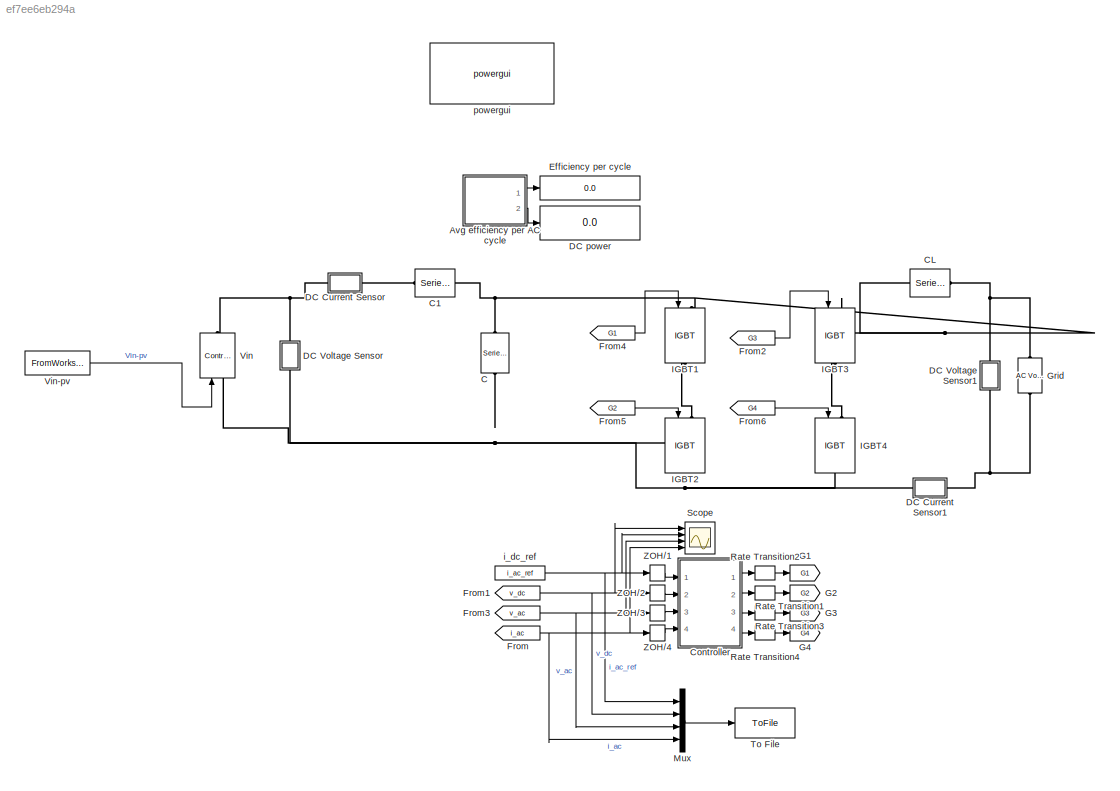
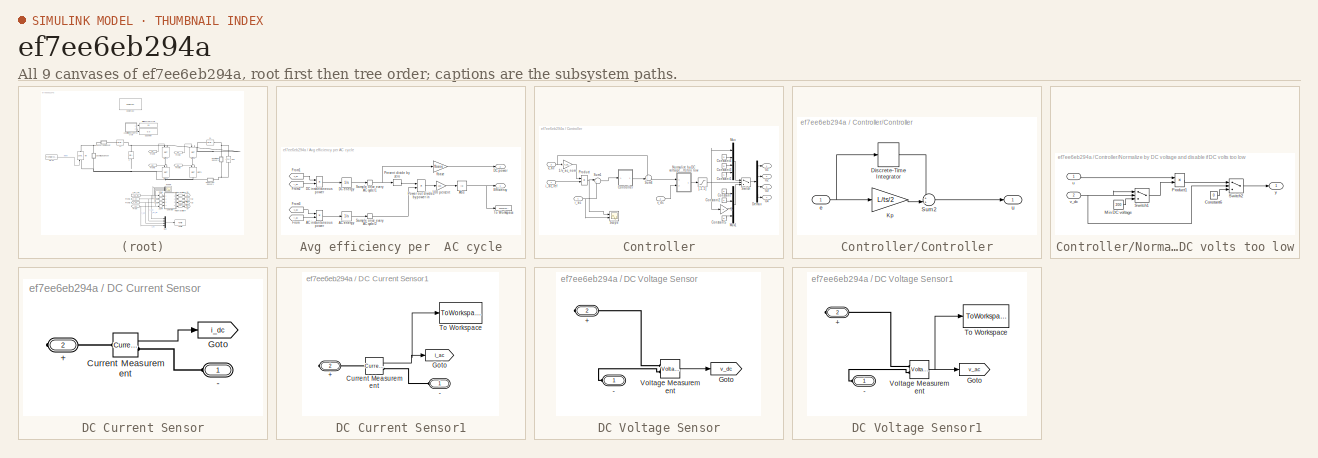
[diagram: thumbnail index - all 9 canvases of the model, root first then tree order]
MODEL slx_ef7ee6eb294a
KIND model
CONFIG AbsTol = auto
CONFIG EnableMultiTasking = off
CONFIG FixedStep = auto
CONFIG InitFcn = load PVOut_final;\nVin = timeseries(ans.Data(:,1),ans.Time);\nirradiance = 1000;\ni_ac_ref = 20.05;\nv_dc_ref = 342;\ntemperature = 20;\nf_pwm = 10000;\nL = 0.005;\nC = 5000e-6;\nts = 1/f_pwm/10;\nv_ac_nom = 220;\nfbase = 50;
CONFIG MaxStep = auto
CONFIG MinStep = auto
CONFIG RelTol = 1e-3
CONFIG SampleTimeConstraint = Unconstrained
CONFIG Solver = VariableStepAuto
CONFIG SolverName = VariableStepAuto
CONFIG StartTime = 0.0
CONFIG StopTime = 43200
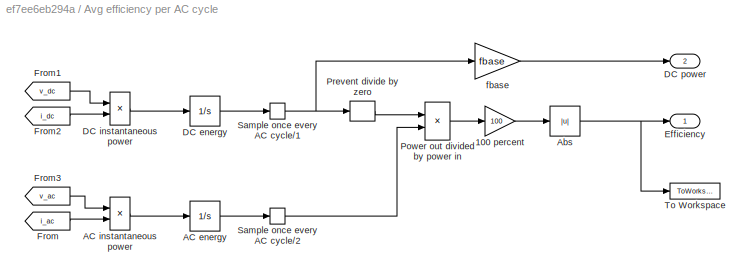
BLOCK [SubSystem] Avg efficiency per  AC cycle
  Ports = [0, 2]
  RequestExecContextInheritance = off
BLOCK [Gain] Avg efficiency per  AC cycle/100 percent
  Gain = 100
BLOCK [Integrator] Avg efficiency per  AC cycle/AC energy
  Ports = [1, 1]
BLOCK [Product] Avg efficiency per  AC cycle/AC instantaneous power
  Ports = [2, 1]
  RndMeth = Floor
BLOCK [Abs] Avg efficiency per  AC cycle/Abs
  SaturateOnIntegerOverflow = off
BLOCK [Integrator] Avg efficiency per  AC cycle/DC energy
  Ports = [1, 1]
BLOCK [Product] Avg efficiency per  AC cycle/DC instantaneous power
  Ports = [2, 1]
  RndMeth = Floor
BLOCK [Outport] Avg efficiency per  AC cycle/DC power
  IconDisplay = Port number
  Port = 2
BLOCK [Outport] Avg efficiency per  AC cycle/Efficiency
  IconDisplay = Port number
BLOCK [From] Avg efficiency per  AC cycle/From
  GotoTag = i_ac
  TagVisibility = global
BLOCK [From] Avg efficiency per  AC cycle/From1
  GotoTag = v_dc
  TagVisibility = global
BLOCK [From] Avg efficiency per  AC cycle/From2
  GotoTag = i_dc
  TagVisibility = global
BLOCK [From] Avg efficiency per  AC cycle/From3
  GotoTag = v_ac
  TagVisibility = global
BLOCK [Product] Avg efficiency per  AC cycle/Power out divided by power in
  Inputs = /*
  Ports = [2, 1]
  RndMeth = Floor
BLOCK [Bias] Avg efficiency per  AC cycle/Prevent divide by zero
  Bias = eps
  SaturateOnIntegerOverflow = off
BLOCK [ZeroOrderHold] Avg efficiency per  AC cycle/Sample once every AC cycle//1
  SampleTime = 1/fbase
BLOCK [ZeroOrderHold] Avg efficiency per  AC cycle/Sample once every AC cycle//2
  SampleTime = 1/fbase
BLOCK [ToWorkspace] Avg efficiency per  AC cycle/To Workspace
  MaxDataPoints = 1
  Ports = [1]
  SampleTime = -1
  SaveFormat = Structure
  VariableName = efficiency
BLOCK [Gain] Avg efficiency per  AC cycle/fbase
  Gain = fbase
BLOCK [Reference] C  REF=powerlib/Elements/Series RLC Branch
  Ports = [0, 0, 0, 0, 0, 1, 1]
  SourceBlock = powerlib/Elements/Series RLC Branch
  SourceProductBaseCode = PS
  SourceProductName = Simscape Power Systems
  SourceType = Series RLC Branch
BLOCK [Reference] C1  REF=powerlib/Elements/Series RLC Branch
  Ports = [0, 0, 0, 0, 0, 1, 1]
  SourceBlock = powerlib/Elements/Series RLC Branch
  SourceProductBaseCode = PS
  SourceProductName = Simscape Power Systems
  SourceType = Series RLC Branch
BLOCK [Reference] CL  REF=powerlib/Elements/Series RLC Branch
  Ports = [0, 0, 0, 0, 0, 1, 1]
  SourceBlock = powerlib/Elements/Series RLC Branch
  SourceProductBaseCode = PS
  SourceProductName = Simscape Power Systems
  SourceType = Series RLC Branch
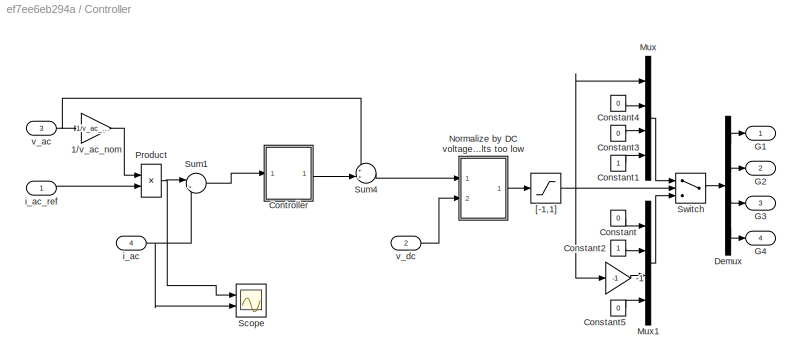
BLOCK [SubSystem] Controller
  Ports = [4, 4]
  RequestExecContextInheritance = off
BLOCK [Gain] Controller/-1
  Gain = -1
BLOCK [Gain] Controller/1//v_ac_nom
  Gain = 1/v_ac_nom
BLOCK [Constant] Controller/Constant
  Value = 0
BLOCK [Constant] Controller/Constant1
BLOCK [Constant] Controller/Constant2
BLOCK [Constant] Controller/Constant3
  Value = 0
BLOCK [Constant] Controller/Constant4
  Value = 0
BLOCK [Constant] Controller/Constant5
  Value = 0
BLOCK [SubSystem] Controller/Controller
  Ports = [1, 1]
  RequestExecContextInheritance = off
BLOCK [DiscreteIntegrator] Controller/Controller/Discrete-Time Integrator
  ICPrevOutput = DiscIntNeverNeededParam
  ICPrevScaledInput = DiscIntNeverNeededParam
  InitialCondition = 15
  Ports = [1, 1]
  SampleTime = ts
  gainval = 1000*L/ts
BLOCK [Gain] Controller/Controller/Kp
  Gain = L/ts/2
BLOCK [Sum] Controller/Controller/Sum2
  IconShape = round
  Inputs = ++|
  Ports = [2, 1]
BLOCK [Inport] Controller/Controller/e
  IconDisplay = Port number
BLOCK [Outport] Controller/Controller/u
  IconDisplay = Port number
BLOCK [Demux] Controller/Demux
  DisplayOption = bar
  Ports = [1, 4]
BLOCK [Outport] Controller/G1
  IconDisplay = Port number
BLOCK [Outport] Controller/G2
  IconDisplay = Port number
  Port = 2
BLOCK [Outport] Controller/G3
  IconDisplay = Port number
  Port = 3
BLOCK [Outport] Controller/G4
  IconDisplay = Port number
  Port = 4
BLOCK [Mux] Controller/Mux
  DisplayOption = bar
  Ports = [4, 1]
BLOCK [Mux] Controller/Mux1
  DisplayOption = bar
  Ports = [4, 1]
BLOCK [SubSystem] Controller/Normalize by DC voltage and disable if DC volts too low
  Ports = [2, 1]
  RequestExecContextInheritance = off
BLOCK [Constant] Controller/Normalize by DC voltage and disable if DC volts too low/Constant6
  Value = 0
BLOCK [Constant] Controller/Normalize by DC voltage and disable if DC volts too low/Min DC voltage
  Value = 200
BLOCK [Product] Controller/Normalize by DC voltage and disable if DC volts too low/Product1
  Inputs = */
  Ports = [2, 1]
  RndMeth = Floor
BLOCK [Switch] Controller/Normalize by DC voltage and disable if DC volts too low/Switch1
  SaturateOnIntegerOverflow = off
  Threshold = 200
BLOCK [Switch] Controller/Normalize by DC voltage and disable if DC volts too low/Switch2
  SaturateOnIntegerOverflow = off
  Threshold = 200
BLOCK [Inport] Controller/Normalize by DC voltage and disable if DC volts too low/u
  IconDisplay = Port number
BLOCK [Inport] Controller/Normalize by DC voltage and disable if DC volts too low/v_dc
  IconDisplay = Port number
  Port = 2
BLOCK [Outport] Controller/Normalize by DC voltage and disable if DC volts too low/y
  IconDisplay = Port number
BLOCK [Product] Controller/Product
  Ports = [2, 1]
  RndMeth = Floor
BLOCK [Scope] Controller/Scope
  Floating = off
  NumInputPorts = 2
  Ports = [2]
  ScopeSpecificationString = Simulink.scopes.TimeScopeBlockCfg('CurrentConfiguration', extmgr.ConfigurationSet(extmgr.Configuration('Core','General UI',true,'FigureColor',[0.156862745098039 0.156862745098039 0.156862745098039]),extmgr.Configuration('Core','Source UI',true),extmgr.Configuration('Sources','WiredSimulink',true,'DataLoggingSaveFormat','StructureWithTime','DataLoggingDecimation','1','DataLoggingDecimateData',true)...<+3434ch>
BLOCK [Sum] Controller/Sum1
  IconShape = round
  Inputs = |+-
  Ports = [2, 1]
BLOCK [Sum] Controller/Sum4
  IconShape = round
  Inputs = ++|
  Ports = [2, 1]
BLOCK [Switch] Controller/Switch
  SaturateOnIntegerOverflow = off
BLOCK [Saturate] Controller/[-1,1]
  InputPortMap = u0
  LowerLimit = -1
  Ports = [1, 1]
  UpperLimit = 1
BLOCK [Inport] Controller/i_ac
  IconDisplay = Port number
  Port = 4
BLOCK [Inport] Controller/i_ac_ref
  IconDisplay = Port number
BLOCK [Inport] Controller/v_ac
  IconDisplay = Port number
  Port = 3
BLOCK [Inport] Controller/v_dc
  IconDisplay = Port number
  Port = 2
BLOCK [SubSystem] DC Current Sensor
  Ports = [0, 0, 0, 0, 0, 1, 1]
  RequestExecContextInheritance = off
BLOCK [PMIOPort] DC Current Sensor/+
  Port = 2
  Side = Right
BLOCK [PMIOPort] DC Current Sensor/-
  Side = Left
BLOCK [Reference] DC Current Sensor/Current Measurement  REF=powerlib/Measurements/Current Measurement
  Ports = [0, 1, 0, 0, 0, 1, 1]
  SourceBlock = powerlib/Measurements/Current Measurement
  SourceProductBaseCode = PS
  SourceProductName = Simscape Power Systems
  SourceType = Current Measurement
  UserDataPersistent = on
BLOCK [Goto] DC Current Sensor/Goto
  GotoTag = i_dc
  TagVisibility = global
BLOCK [SubSystem] DC Current Sensor1
  Ports = [0, 0, 0, 0, 0, 1, 1]
  RequestExecContextInheritance = off
BLOCK [PMIOPort] DC Current Sensor1/+
  Port = 2
  Side = Right
BLOCK [PMIOPort] DC Current Sensor1/-
  Side = Left
BLOCK [Reference] DC Current Sensor1/Current Measurement  REF=powerlib/Measurements/Current Measurement
  Ports = [0, 1, 0, 0, 0, 1, 1]
  SourceBlock = powerlib/Measurements/Current Measurement
  SourceProductBaseCode = PS
  SourceProductName = Simscape Power Systems
  SourceType = Current Measurement
  UserDataPersistent = on
BLOCK [Goto] DC Current Sensor1/Goto
  GotoTag = i_ac
  TagVisibility = global
BLOCK [ToWorkspace] DC Current Sensor1/To Workspace
  FixptAsFi = on
  MaxDataPoints = inf
  Ports = [1]
  SampleTime = -1
  Save2DSignal = 3-D array (concatenate along third dimension)
  SaveFormat = Structure With Time
  VariableName = i_ac
BLOCK [SubSystem] DC Voltage Sensor
  Ports = [0, 0, 0, 0, 0, 1, 1]
  RequestExecContextInheritance = off
BLOCK [PMIOPort] DC Voltage Sensor/+
  Port = 2
  Side = Right
BLOCK [PMIOPort] DC Voltage Sensor/-
  Side = Left
BLOCK [Goto] DC Voltage Sensor/Goto
  GotoTag = v_dc
  TagVisibility = global
BLOCK [Reference] DC Voltage Sensor/Voltage Measurement  REF=powerlib/Measurements/Voltage Measurement
  Ports = [0, 1, 0, 0, 0, 2]
  SourceBlock = powerlib/Measurements/Voltage Measurement
  SourceProductBaseCode = PS
  SourceProductName = Simscape Power Systems
  SourceType = Voltage Measurement
  UserDataPersistent = on
BLOCK [SubSystem] DC Voltage Sensor1
  Ports = [0, 0, 0, 0, 0, 1, 1]
  RequestExecContextInheritance = off
BLOCK [PMIOPort] DC Voltage Sensor1/+
  Port = 2
  Side = Right
BLOCK [PMIOPort] DC Voltage Sensor1/-
  Side = Left
BLOCK [Goto] DC Voltage Sensor1/Goto
  GotoTag = v_ac
  TagVisibility = global
BLOCK [ToWorkspace] DC Voltage Sensor1/To Workspace
  FixptAsFi = on
  MaxDataPoints = inf
  Ports = [1]
  SampleTime = -1
  Save2DSignal = 3-D array (concatenate along third dimension)
  SaveFormat = Structure With Time
  VariableName = v_ac
BLOCK [Reference] DC Voltage Sensor1/Voltage Measurement  REF=powerlib/Measurements/Voltage Measurement
  Ports = [0, 1, 0, 0, 0, 2]
  SourceBlock = powerlib/Measurements/Voltage Measurement
  SourceProductBaseCode = PS
  SourceProductName = Simscape Power Systems
  SourceType = Voltage Measurement
  UserDataPersistent = on
BLOCK [Display] DC power
  Decimation = 1
  Ports = [1]
BLOCK [Display] Efficiency per cycle
  Decimation = 1
  Ports = [1]
BLOCK [From] From
  GotoTag = i_ac
  TagVisibility = global
BLOCK [From] From1
  GotoTag = v_dc
  TagVisibility = global
BLOCK [From] From2
  GotoTag = G3
  TagVisibility = global
BLOCK [From] From3
  GotoTag = v_ac
  TagVisibility = global
BLOCK [From] From4
  GotoTag = G1
  TagVisibility = global
BLOCK [From] From5
  GotoTag = G2
  TagVisibility = global
BLOCK [From] From6
  GotoTag = G4
  TagVisibility = global
BLOCK [Goto] G1
  GotoTag = G1
  TagVisibility = global
BLOCK [Goto] G2
  GotoTag = G2
  TagVisibility = global
BLOCK [Goto] G3
  GotoTag = G3
  TagVisibility = global
BLOCK [Goto] G4
  GotoTag = G4
  TagVisibility = global
BLOCK [Reference] Grid  REF=powerlib/Electrical
Sources/AC Voltage Source
  Ports = [0, 0, 0, 0, 0, 1, 1]
  SourceBlock = powerlib/Electrical\nSources/AC Voltage Source
  SourceProductBaseCode = PS
  SourceProductName = Simscape Power Systems
  SourceType = AC Voltage Source
BLOCK [Reference] IGBT1  REF=powerlib/Power
Electronics/IGBT
  Ports = [1, 0, 0, 0, 0, 1, 1]
  SourceBlock = powerlib/Power\nElectronics/IGBT
  SourceProductBaseCode = PS
  SourceProductName = Simscape Power Systems
  SourceType = IGBT
BLOCK [Reference] IGBT2  REF=powerlib/Power
Electronics/IGBT
  Ports = [1, 0, 0, 0, 0, 1, 1]
  SourceBlock = powerlib/Power\nElectronics/IGBT
  SourceProductBaseCode = PS
  SourceProductName = Simscape Power Systems
  SourceType = IGBT
BLOCK [Reference] IGBT3  REF=powerlib/Power
Electronics/IGBT
  Ports = [1, 0, 0, 0, 0, 1, 1]
  SourceBlock = powerlib/Power\nElectronics/IGBT
  SourceProductBaseCode = PS
  SourceProductName = Simscape Power Systems
  SourceType = IGBT
BLOCK [Reference] IGBT4  REF=powerlib/Power
Electronics/IGBT
  Ports = [1, 0, 0, 0, 0, 1, 1]
  SourceBlock = powerlib/Power\nElectronics/IGBT
  SourceProductBaseCode = PS
  SourceProductName = Simscape Power Systems
  SourceType = IGBT
BLOCK [Mux] Mux
  DisplayOption = bar
  Ports = [4, 1]
BLOCK [RateTransition] Rate Transition1
BLOCK [RateTransition] Rate Transition2
BLOCK [RateTransition] Rate Transition3
BLOCK [RateTransition] Rate Transition4
BLOCK [Scope] Scope
  Floating = off
  NumInputPorts = 4
  Ports = [4]
  ScopeSpecificationString = Simulink.scopes.TimeScopeBlockCfg('CurrentConfiguration', extmgr.ConfigurationSet(extmgr.Configuration('Core','General UI',true,'FigureColor',[0.156862745098039 0.156862745098039 0.156862745098039]),extmgr.Configuration('Core','Source UI',true),extmgr.Configuration('Sources','WiredSimulink',true,'DataLoggingVariableName','ScopeData2','DataLoggingSaveFormat','StructureWithTime','DataLoggingMaxPoint...<+6318ch>
BLOCK [ToFile] To File
  Filename = ConvOut.mat
  MatrixName = SigOut
  Ports = [1]
  SampleTime = 1/60
  SaveFormat = Timeseries
BLOCK [Reference] Vin  REF=powerlib/Electrical
Sources/Controlled Voltage Source
  Ports = [1, 0, 0, 0, 0, 1, 1]
  SourceBlock = powerlib/Electrical\nSources/Controlled Voltage Source
  SourceProductBaseCode = PS
  SourceProductName = Simscape Power Systems
  SourceType = Controlled Voltage Source
BLOCK [FromWorkspace] Vin-pv
  SampleTime = 1
  VariableName = Vin
  ZeroCross = on
BLOCK [ZeroOrderHold] ZOH//1
  SampleTime = ts
BLOCK [ZeroOrderHold] ZOH//2
  SampleTime = ts
BLOCK [ZeroOrderHold] ZOH//3
  SampleTime = ts
BLOCK [ZeroOrderHold] ZOH//4
  SampleTime = ts
BLOCK [Constant] i_dc_ref
  Value = i_ac_ref
BLOCK [Reference] powergui  REF=powerlib/powergui
  Ports = []
  SourceBlock = powerlib/powergui
  SourceProductBaseCode = PS
  SourceProductName = Simscape Power Systems
  SourceType = PSB option menu block
LINE Avg efficiency per  AC cycle/100 percent:1 -> Avg efficiency per  AC cycle/Abs:1
LINE Avg efficiency per  AC cycle/AC energy:1 -> Avg efficiency per  AC cycle/Sample once every AC cycle//2:1
LINE Avg efficiency per  AC cycle/AC instantaneous power:1 -> Avg efficiency per  AC cycle/AC energy:1
NET Avg efficiency per  AC cycle/Abs:1 -> Avg efficiency per  AC cycle/Efficiency:1, Avg efficiency per  AC cycle/To Workspace:1
LINE Avg efficiency per  AC cycle/DC energy:1 -> Avg efficiency per  AC cycle/Sample once every AC cycle//1:1
LINE Avg efficiency per  AC cycle/DC instantaneous power:1 -> Avg efficiency per  AC cycle/DC energy:1
LINE Avg efficiency per  AC cycle/From1:1 -> Avg efficiency per  AC cycle/DC instantaneous power:1
LINE Avg efficiency per  AC cycle/From2:1 -> Avg efficiency per  AC cycle/DC instantaneous power:2
LINE Avg efficiency per  AC cycle/From3:1 -> Avg efficiency per  AC cycle/AC instantaneous power:1
LINE Avg efficiency per  AC cycle/From:1 -> Avg efficiency per  AC cycle/AC instantaneous power:2
LINE Avg efficiency per  AC cycle/Power out divided by power in:1 -> Avg efficiency per  AC cycle/100 percent:1
LINE Avg efficiency per  AC cycle/Prevent divide by zero:1 -> Avg efficiency per  AC cycle/Power out divided by power in:1
NET Avg efficiency per  AC cycle/Sample once every AC cycle//1:1 -> Avg efficiency per  AC cycle/Prevent divide by zero:1, Avg efficiency per  AC cycle/fbase:1
LINE Avg efficiency per  AC cycle/Sample once every AC cycle//2:1 -> Avg efficiency per  AC cycle/Power out divided by power in:2
LINE Avg efficiency per  AC cycle/fbase:1 -> Avg efficiency per  AC cycle/DC power:1
LINE Avg efficiency per  AC cycle:1 -> Efficiency per cycle:1
LINE Avg efficiency per  AC cycle:2 -> DC power:1
LINE Controller/-1:1 -> Controller/Mux1:3
LINE Controller/1//v_ac_nom:1 -> Controller/Product:1
LINE Controller/Constant1:1 -> Controller/Mux:4
LINE Controller/Constant2:1 -> Controller/Mux1:2
LINE Controller/Constant3:1 -> Controller/Mux:3
LINE Controller/Constant4:1 -> Controller/Mux:2
LINE Controller/Constant5:1 -> Controller/Mux1:4
LINE Controller/Constant:1 -> Controller/Mux1:1
LINE Controller/Controller/Discrete-Time Integrator:1 -> Controller/Controller/Sum2:1
LINE Controller/Controller/Kp:1 -> Controller/Controller/Sum2:2
LINE Controller/Controller/Sum2:1 -> Controller/Controller/u:1
NET Controller/Controller/e:1 -> Controller/Controller/Discrete-Time Integrator:1, Controller/Controller/Kp:1
LINE Controller/Controller:1 -> Controller/Sum4:2
LINE Controller/Demux:1 -> Controller/G1:1
LINE Controller/Demux:2 -> Controller/G2:1
LINE Controller/Demux:3 -> Controller/G3:1
LINE Controller/Demux:4 -> Controller/G4:1
LINE Controller/Mux1:1 -> Controller/Switch:3
LINE Controller/Mux:1 -> Controller/Switch:1
LINE Controller/Normalize by DC voltage and disable if DC volts too low/Constant6:1 -> Controller/Normalize by DC voltage and disable if DC volts too low/Switch2:3
LINE Controller/Normalize by DC voltage and disable if DC volts too low/Min DC voltage:1 -> Controller/Normalize by DC voltage and disable if DC volts too low/Switch1:3
LINE Controller/Normalize by DC voltage and disable if DC volts too low/Product1:1 -> Controller/Normalize by DC voltage and disable if DC volts too low/Switch2:1
LINE Controller/Normalize by DC voltage and disable if DC volts too low/Switch1:1 -> Controller/Normalize by DC voltage and disable if DC volts too low/Product1:2
LINE Controller/Normalize by DC voltage and disable if DC volts too low/Switch2:1 -> Controller/Normalize by DC voltage and disable if DC volts too low/y:1
LINE Controller/Normalize by DC voltage and disable if DC volts too low/u:1 -> Controller/Normalize by DC voltage and disable if DC volts too low/Product1:1
NET Controller/Normalize by DC voltage and disable if DC volts too low/v_dc:1 -> Controller/Normalize by DC voltage and disable if DC volts too low/Switch1:1, Controller/Normalize by DC voltage and disable if DC volts too low/Switch1:2, Controller/Normalize by DC voltage and disable if DC volts too low/Switch2:2
LINE Controller/Normalize by DC voltage and disable if DC volts too low:1 -> Controller/[-1,1]:1
NET Controller/Product:1 -> Controller/Scope:1, Controller/Sum1:1
LINE Controller/Sum1:1 -> Controller/Controller:1
LINE Controller/Sum4:1 -> Controller/Normalize by DC voltage and disable if DC volts too low:1
LINE Controller/Switch:1 -> Controller/Demux:1
NET Controller/[-1,1]:1 -> Controller/-1:1, Controller/Mux:1, Controller/Switch:2
NET Controller/i_ac:1 -> Controller/Scope:2, Controller/Sum1:2
LINE Controller/i_ac_ref:1 -> Controller/Product:2
NET Controller/v_ac:1 -> Controller/1//v_ac_nom:1, Controller/Sum4:1
LINE Controller/v_dc:1 -> Controller/Normalize by DC voltage and disable if DC volts too low:2
LINE Controller:1 -> Rate Transition2:1
LINE Controller:2 -> Rate Transition1:1
LINE Controller:3 -> Rate Transition3:1
LINE Controller:4 -> Rate Transition4:1
LINE DC Current Sensor/Current Measurement:1 -> DC Current Sensor/Goto:1
NET DC Current Sensor1/Current Measurement:1 -> DC Current Sensor1/Goto:1, DC Current Sensor1/To Workspace:1
LINE DC Voltage Sensor/Voltage Measurement:1 -> DC Voltage Sensor/Goto:1
NET DC Voltage Sensor1/Voltage Measurement:1 -> DC Voltage Sensor1/Goto:1, DC Voltage Sensor1/To Workspace:1
NET From1:1 -> Mux:2, Scope:1, ZOH//2:1
LINE From2:1 -> IGBT3:1
NET From3:1 -> Mux:3, Scope:3, ZOH//3:1
LINE From4:1 -> IGBT1:1
LINE From5:1 -> IGBT2:1
LINE From6:1 -> IGBT4:1
NET From:1 -> Mux:4, Scope:4, ZOH//4:1
LINE Mux:1 -> To File:1
LINE Rate Transition1:1 -> G2:1
LINE Rate Transition2:1 -> G1:1
LINE Rate Transition3:1 -> G3:1
LINE Rate Transition4:1 -> G4:1
LINE Vin-pv:1 -> Vin:1
LINE ZOH//1:1 -> Controller:1
LINE ZOH//2:1 -> Controller:2
LINE ZOH//3:1 -> Controller:3
LINE ZOH//4:1 -> Controller:4
NET i_dc_ref:1 -> Mux:1, Scope:2, ZOH//1:1
PLINE C1:LConn1 -- DC Current Sensor:LConn1
PNET net1: C1:RConn1 -- C:LConn1 -- CL:LConn1 -- IGBT1:LConn1 -- IGBT3:LConn1
PNET net2: C:RConn1 -- DC Current Sensor1:LConn1 -- DC Voltage Sensor:LConn1 -- IGBT2:RConn1 -- IGBT4:RConn1 -- Vin:LConn1
PNET net3: CL:RConn1 -- DC Voltage Sensor1:RConn1 -- Grid:RConn1
PLINE DC Current Sensor/+:RConn1 -- DC Current Sensor/Current Measurement:LConn1
PLINE DC Current Sensor/-:RConn1 -- DC Current Sensor/Current Measurement:RConn1
PLINE DC Current Sensor1/+:RConn1 -- DC Current Sensor1/Current Measurement:LConn1
PLINE DC Current Sensor1/-:RConn1 -- DC Current Sensor1/Current Measurement:RConn1
PNET net4: DC Current Sensor1:RConn1 -- DC Voltage Sensor1:LConn1 -- Grid:LConn1
PNET net5: DC Current Sensor:RConn1 -- DC Voltage Sensor:RConn1 -- Vin:RConn1
PLINE DC Voltage Sensor/+:RConn1 -- DC Voltage Sensor/Voltage Measurement:LConn1
PLINE DC Voltage Sensor/-:RConn1 -- DC Voltage Sensor/Voltage Measurement:LConn2
PLINE DC Voltage Sensor1/+:RConn1 -- DC Voltage Sensor1/Voltage Measurement:LConn1
PLINE DC Voltage Sensor1/-:RConn1 -- DC Voltage Sensor1/Voltage Measurement:LConn2
PLINE IGBT1:RConn1 -- IGBT2:LConn1
PLINE IGBT3:RConn1 -- IGBT4:LConn1
note: NET lines group one-source signal fan-out (src -> all destinations, sorted); 1:1 wires keep LINE; PNET lines group multi-terminal physical nets as a canonical sorted terminal list (undirected conserving connections); 2-terminal nets keep the pairwise PLINE form
